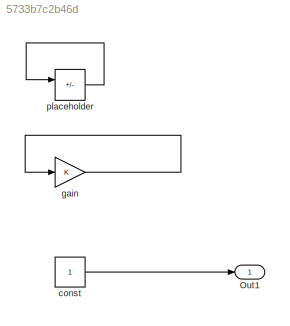
MODEL slx_5733b7c2b46d
KIND model
CONFIG AbsTol = auto
CONFIG EnableMultiTasking = off
CONFIG FixedStep = auto
CONFIG MaxStep = auto
CONFIG MinStep = auto
CONFIG RelTol = 1e-3
CONFIG SampleTimeConstraint = Unconstrained
CONFIG SolverName = VariableStepAuto
CONFIG StartTime = 0.0
CONFIG StopTime = 10.0
BLOCK [Outport] Out1
BLOCK [Constant] const
BLOCK [Gain] gain
BLOCK [Sum] placeholder
  IconShape = rectangular
  Inputs = +-
LINE const:1 -> Out1:1
LINE gain:1 -> gain:1
LINE placeholder:1 -> placeholder:1
